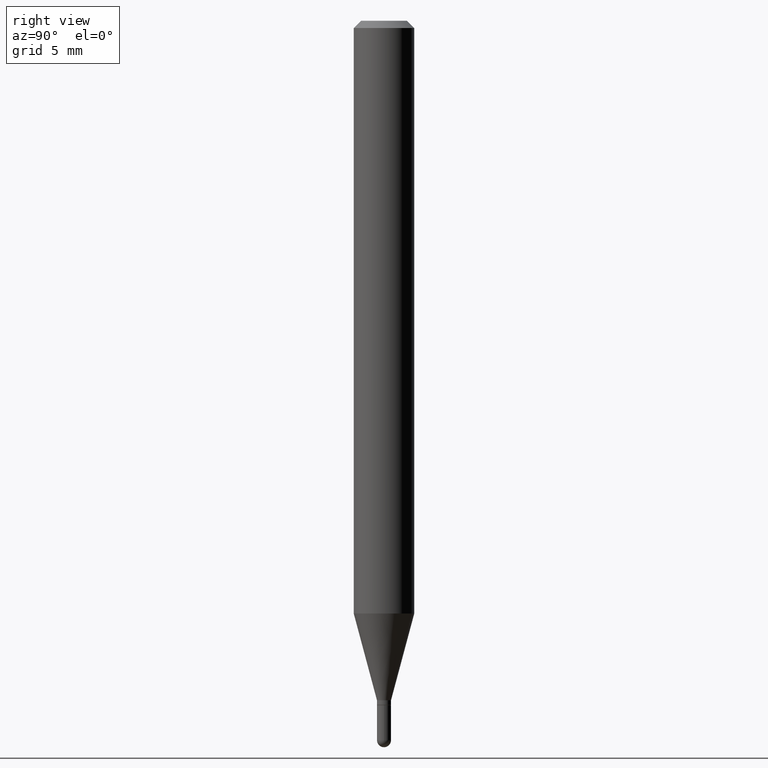
[diagram: clean part render]
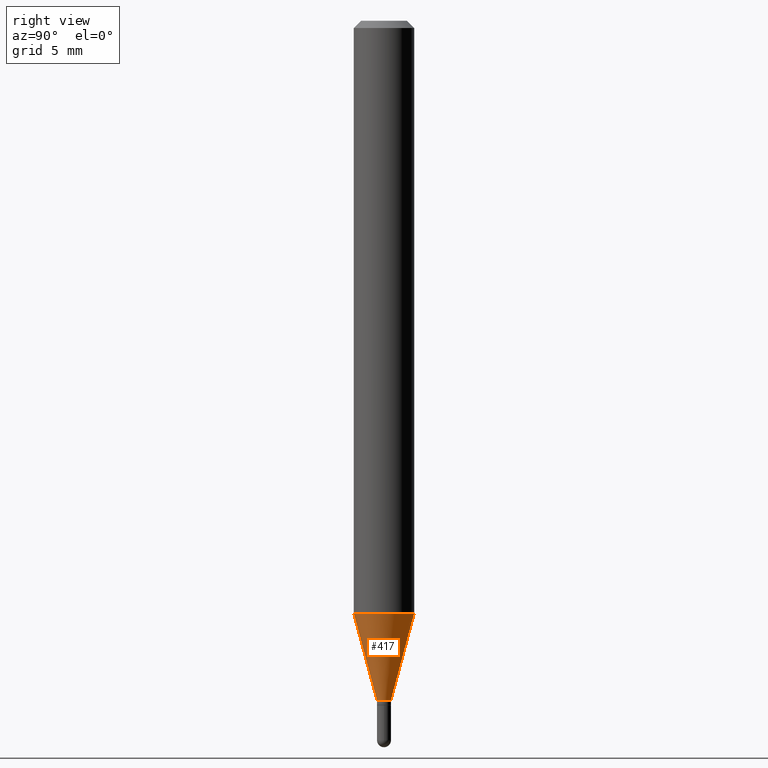
[diagram: same view with one face highlighted and labeled with its STEP entity id]
A machine part, right view. The second image highlights one B-rep face of the part: STEP entity #417.
In plain terms, the highlighted conical surface has half-angle 15 deg.
Its self-contained STEP definition (entity closure, byte-faithful):
#24 = LINE ( 'NONE', #180, #61 ) ;
#28 = CIRCLE ( 'NONE', #430, 0.01449999999999992441 ) ;
#31 = CARTESIAN_POINT ( 'NONE',  ( -1.012529588264160223E-16, -0.01450000000000482153, -1.402999999999999803 ) ) ;
#42 = DIRECTION ( 'NONE',  ( -6.982962677686265922E-15, -1.000000000000000000, 0.000000000000000000 ) ) ;
#61 = VECTOR ( 'NONE', #454, 39.37007874015748854 ) ;
#69 = AXIS2_PLACEMENT_3D ( 'NONE', #318, #280, #352 ) ;
#96 = EDGE_CURVE ( 'NONE', #148, #487, #238, .T. ) ;
#101 = EDGE_CURVE ( 'NONE', #336, #214, #28, .T. ) ;
#114 = CARTESIAN_POINT ( 'NONE',  ( 2.735589532676705169E-16, 0.01449999999999502555, -1.402999999999999803 ) ) ;
#148 = VERTEX_POINT ( 'NONE', #400 ) ;
#166 = ORIENTED_EDGE ( 'NONE', *, *, #96, .F. ) ;
#180 = CARTESIAN_POINT ( 'NONE',  ( 1.030286966852482683E-16, 0.01449999999999502555, -1.402999999999999803 ) ) ;
#188 = ORIENTED_EDGE ( 'NONE', *, *, #471, .F. ) ;
#197 = DIRECTION ( 'NONE',  ( -2.445457456841119029E-29, 3.491497591749743261E-15, 1.000000000000000000 ) ) ;
#202 = CARTESIAN_POINT ( 'NONE',  ( 3.430976811948089539E-29, -4.898571121224889607E-15, -1.402999999999999803 ) ) ;
#214 = VERTEX_POINT ( 'NONE', #114 ) ;
#215 = CARTESIAN_POINT ( 'NONE',  ( -1.012529588264160223E-16, -0.01450000000000482153, -1.402999999999999803 ) ) ;
#216 = ORIENTED_EDGE ( 'NONE', *, *, #439, .T. ) ;
#238 = CIRCLE ( 'NONE', #69, 0.06250000000000000000 ) ;
#239 = VECTOR ( 'NONE', #268, 39.37007874015748854 ) ;
#258 = FACE_OUTER_BOUND ( 'NONE', #265, .T. ) ;
#265 = EDGE_LOOP ( 'NONE', ( #442, #216, #166, #188 ) ) ;
#266 = LINE ( 'NONE', #31, #239 ) ;
#268 = DIRECTION ( 'NONE',  ( -1.807323732225331717E-15, -0.2588190451025184080, 0.9659258262890689783 ) ) ;
#280 = DIRECTION ( 'NONE',  ( -2.445457456841119029E-29, 3.491497591749743261E-15, 1.000000000000000000 ) ) ;
#318 = CARTESIAN_POINT ( 'NONE',  ( 2.992901381067487827E-29, -4.273109693692998475E-15, -1.223861561236694095 ) ) ;
#336 = VERTEX_POINT ( 'NONE', #215 ) ;
#351 = AXIS2_PLACEMENT_3D ( 'NONE', #420, #388, #501 ) ;
#352 = DIRECTION ( 'NONE',  ( -6.982962677686265922E-15, -1.000000000000000000, 4.370956789862821150E-15 ) ) ;
#388 = DIRECTION ( 'NONE',  ( -2.445457456841119029E-29, 3.491497591749743261E-15, 1.000000000000000000 ) ) ;
#400 = CARTESIAN_POINT ( 'NONE',  ( -4.364351673553617913E-16, -0.06250000000000427436, -1.223861561236693873 ) ) ;
#417 = ADVANCED_FACE ( 'NONE', ( #258 ), #489, .T. ) ;
#420 = CARTESIAN_POINT ( 'NONE',  ( 3.430976811948089539E-29, -4.898571121224889607E-15, -1.402999999999999803 ) ) ;
#430 = AXIS2_PLACEMENT_3D ( 'NONE', #202, #197, #42 ) ;
#439 = EDGE_CURVE ( 'NONE', #214, #487, #24, .T. ) ;
#442 = ORIENTED_EDGE ( 'NONE', *, *, #101, .T. ) ;
#454 = DIRECTION ( 'NONE',  ( 1.839019923739601893E-15, 0.2588190451025252359, 0.9659258262890670910 ) ) ;
#462 = CARTESIAN_POINT ( 'NONE',  ( 4.440892098500922971E-16, 0.06249999999999571176, -1.223861561236694540 ) ) ;
#471 = EDGE_CURVE ( 'NONE', #336, #148, #266, .T. ) ;
#487 = VERTEX_POINT ( 'NONE', #462 ) ;
#489 = CONICAL_SURFACE ( 'NONE', #351, 0.01449999999999992441, 0.2617993877991505181 ) ;
#501 = DIRECTION ( 'NONE',  ( -6.982962677686265922E-15, -1.000000000000000000, 0.000000000000000000 ) ) ;